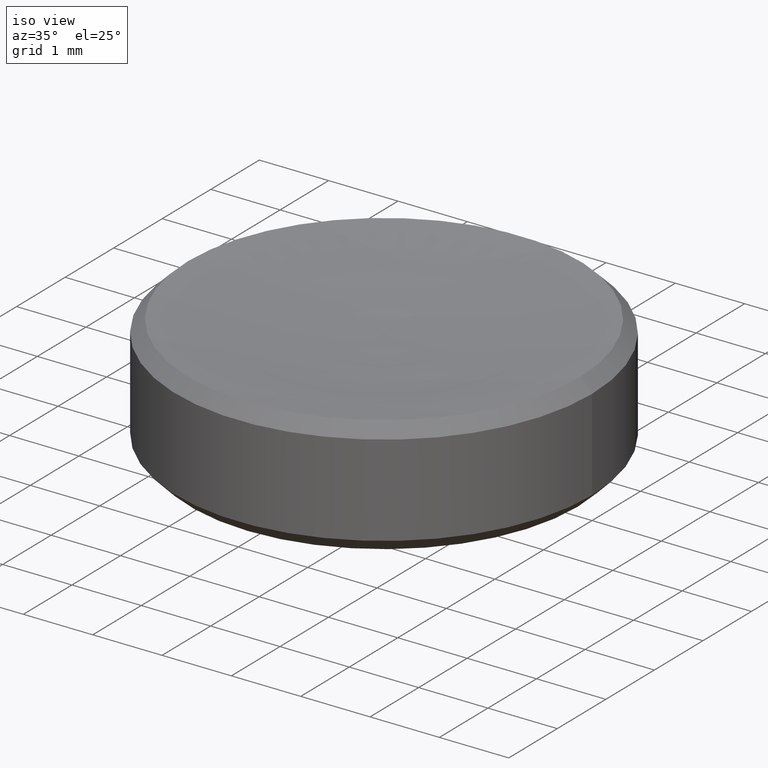
[diagram: clean part render]
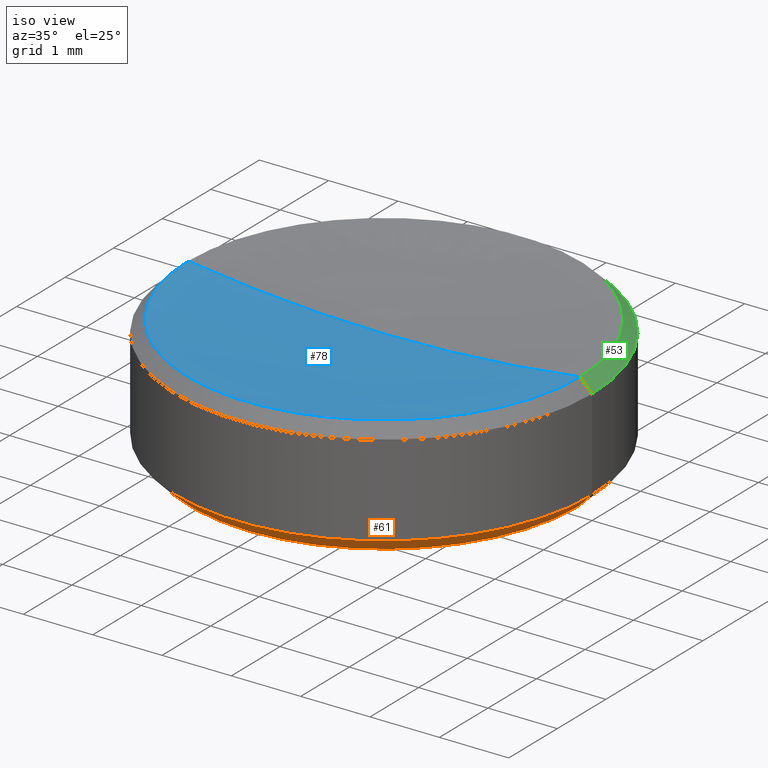
[diagram: same view with three faces highlighted in distinct colors, each labeled with its STEP entity id]
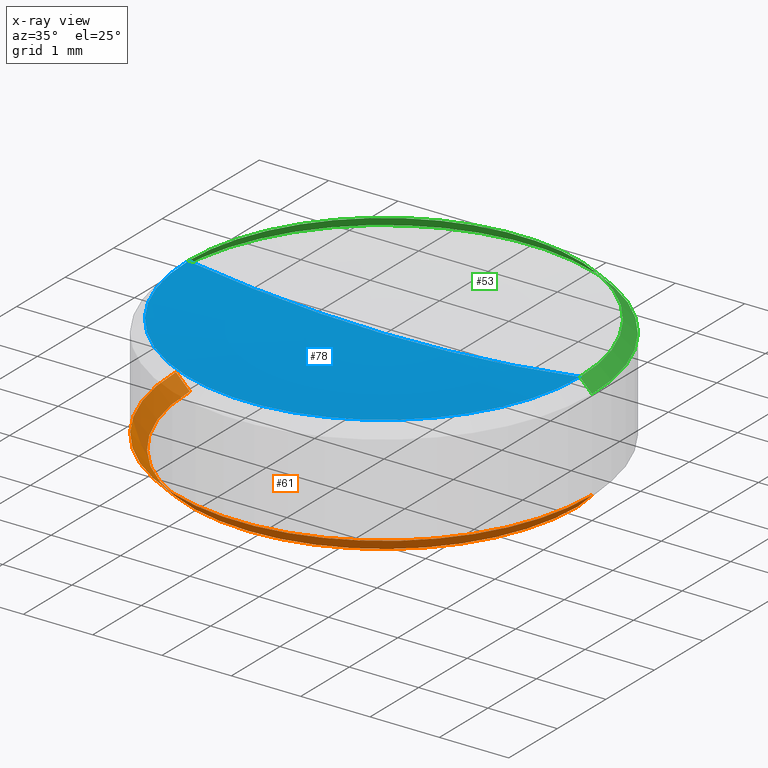
[diagram: x-ray of the same camera — body ghosted, the three highlighted faces saturated]
A machine part, iso view with three faces highlighted in distinct colors.
The next image is the same camera in x-ray (body ghosted, the three faces saturated) — at least one of them is partly hidden behind the body in this view.
Their STEP definitions:

[orange] entity #61 — the highlighted conical surface has half-angle 45 deg.
#2 = EDGE_CURVE ( 'NONE', #203, #196, #263, .T. ) ;
#17 = VECTOR ( 'NONE', #161, 1000.000000000000000 ) ;
#28 = LINE ( 'NONE', #241, #17 ) ;
#38 = CONICAL_SURFACE ( 'NONE', #184, 3.000000000000000000, 0.7853981633974471688 ) ;
#55 = ORIENTED_EDGE ( 'NONE', *, *, #126, .F. ) ;
#59 = AXIS2_PLACEMENT_3D ( 'NONE', #94, #153, #60 ) ;
#60 = DIRECTION ( 'NONE',  ( 1.000000000000000000, 0.000000000000000000, 0.000000000000000000 ) ) ;
#61 = ADVANCED_FACE ( 'NONE', ( #174 ), #38, .T. ) ;
#72 = ORIENTED_EDGE ( 'NONE', *, *, #2, .F. ) ;
#74 = CARTESIAN_POINT ( 'NONE',  ( -3.000000000000000000, 3.673940397442059868E-16, 0.2000000000000020373 ) ) ;
#83 = DIRECTION ( 'NONE',  ( 1.000000000000000000, 0.000000000000000000, 0.000000000000000000 ) ) ;
#87 = CIRCLE ( 'NONE', #59, 2.799999999999998490 ) ;
#94 = CARTESIAN_POINT ( 'NONE',  ( 0.000000000000000000, 0.000000000000000000, 1.836970198721029934E-16 ) ) ;
#96 = CARTESIAN_POINT ( 'NONE',  ( -3.000000000000000000, 3.673940397442059868E-16, 0.2000000000000020373 ) ) ;
#100 = AXIS2_PLACEMENT_3D ( 'NONE', #107, #233, #83 ) ;
#107 = CARTESIAN_POINT ( 'NONE',  ( 0.000000000000000000, 0.000000000000000000, 0.2000000000000020373 ) ) ;
#109 = DIRECTION ( 'NONE',  ( 1.000000000000000000, 0.000000000000000000, 0.000000000000000000 ) ) ;
#111 = CARTESIAN_POINT ( 'NONE',  ( 0.000000000000000000, 0.000000000000000000, 0.2000000000000020373 ) ) ;
#114 = EDGE_LOOP ( 'NONE', ( #72, #236, #199, #55 ) ) ;
#126 = EDGE_CURVE ( 'NONE', #196, #173, #215, .T. ) ;
#143 = CARTESIAN_POINT ( 'NONE',  ( 2.799999999999998490, 0.000000000000000000, 1.836970198721029934E-16 ) ) ;
#153 = DIRECTION ( 'NONE',  ( 0.000000000000000000, 0.000000000000000000, -1.000000000000000000 ) ) ;
#161 = DIRECTION ( 'NONE',  ( 0.7071067811865467956, 0.000000000000000000, 0.7071067811865483499 ) ) ;
#164 = VECTOR ( 'NONE', #197, 1000.000000000000000 ) ;
#173 = VERTEX_POINT ( 'NONE', #182 ) ;
#174 = FACE_OUTER_BOUND ( 'NONE', #114, .T. ) ;
#180 = CARTESIAN_POINT ( 'NONE',  ( -2.799999999999998490, 3.551475717527323339E-16, 1.836970198721029934E-16 ) ) ;
#182 = CARTESIAN_POINT ( 'NONE',  ( 3.000000000000000000, 0.000000000000000000, 0.2000000000000020373 ) ) ;
#184 = AXIS2_PLACEMENT_3D ( 'NONE', #111, #237, #109 ) ;
#196 = VERTEX_POINT ( 'NONE', #96 ) ;
#197 = DIRECTION ( 'NONE',  ( -0.7071067811865467956, 8.659560562354925463E-17, 0.7071067811865483499 ) ) ;
#199 = ORIENTED_EDGE ( 'NONE', *, *, #224, .T. ) ;
#203 = VERTEX_POINT ( 'NONE', #180 ) ;
#215 = CIRCLE ( 'NONE', #100, 3.000000000000000000 ) ;
#224 = EDGE_CURVE ( 'NONE', #243, #173, #28, .T. ) ;
#233 = DIRECTION ( 'NONE',  ( -0.000000000000000000, -0.000000000000000000, 1.000000000000000000 ) ) ;
#235 = EDGE_CURVE ( 'NONE', #243, #203, #87, .T. ) ;
#236 = ORIENTED_EDGE ( 'NONE', *, *, #235, .F. ) ;
#237 = DIRECTION ( 'NONE',  ( -0.000000000000000000, -0.000000000000000000, 1.000000000000000000 ) ) ;
#241 = CARTESIAN_POINT ( 'NONE',  ( 3.000000000000000000, 0.000000000000000000, 0.2000000000000020373 ) ) ;
#243 = VERTEX_POINT ( 'NONE', #143 ) ;
#263 = LINE ( 'NONE', #74, #164 ) ;

[blue] entity #78 — the highlighted toroidal blend (fillet) surface has major radius 0.0063 mm and minor (blend) radius 20.65 mm.
#3 = AXIS2_PLACEMENT_3D ( 'NONE', #108, #99, #93 ) ;
#21 = CIRCLE ( 'NONE', #216, 20.64999999999999858 ) ;
#32 = CARTESIAN_POINT ( 'NONE',  ( 0.000000000000000000, 0.000000000000000000, 1.500000000000000000 ) ) ;
#47 = CIRCLE ( 'NONE', #102, 20.64999999999999858 ) ;
#51 = CARTESIAN_POINT ( 'NONE',  ( 2.824988047808473013, 0.000000000000000000, 1.695011952191558091 ) ) ;
#56 = CARTESIAN_POINT ( 'NONE',  ( -0.006266596937432424366, 0.000000000000000000, 22.14999904914677842 ) ) ;
#57 = VERTEX_POINT ( 'NONE', #193 ) ;
#69 = DIRECTION ( 'NONE',  ( -1.000000000000000000, 1.224646799147353207E-16, 0.000000000000000000 ) ) ;
#78 = ADVANCED_FACE ( 'NONE', ( #127 ), #220, .F. ) ;
#88 = DIRECTION ( 'NONE',  ( 1.000000000000000000, 0.000000000000000000, 0.000000000000000000 ) ) ;
#93 = DIRECTION ( 'NONE',  ( 1.000000000000000000, 0.000000000000000000, 0.000000000000000000 ) ) ;
#99 = DIRECTION ( 'NONE',  ( -0.000000000000000000, -0.000000000000000000, 1.000000000000000000 ) ) ;
#102 = AXIS2_PLACEMENT_3D ( 'NONE', #212, #250, #69 ) ;
#108 = CARTESIAN_POINT ( 'NONE',  ( 0.000000000000000000, 0.000000000000000000, 1.695011952191558091 ) ) ;
#110 = ORIENTED_EDGE ( 'NONE', *, *, #142, .T. ) ;
#113 = ORIENTED_EDGE ( 'NONE', *, *, #231, .T. ) ;
#127 = FACE_OUTER_BOUND ( 'NONE', #214, .T. ) ;
#135 = DIRECTION ( 'NONE',  ( 0.000000000000000000, -1.000000000000000000, 0.000000000000000000 ) ) ;
#142 = EDGE_CURVE ( 'NONE', #57, #225, #242, .T. ) ;
#157 = VERTEX_POINT ( 'NONE', #32 ) ;
#167 = CARTESIAN_POINT ( 'NONE',  ( 0.000000000000000000, 0.000000000000000000, 22.14999904914677842 ) ) ;
#177 = EDGE_CURVE ( 'NONE', #157, #225, #21, .T. ) ;
#193 = CARTESIAN_POINT ( 'NONE',  ( -2.824988047808473013, 3.459612570378175633E-16, 1.695011952191558091 ) ) ;
#212 = CARTESIAN_POINT ( 'NONE',  ( 0.006266596937432424366, -7.674367880973224398E-19, 22.14999904914677842 ) ) ;
#214 = EDGE_LOOP ( 'NONE', ( #266, #113, #110 ) ) ;
#216 = AXIS2_PLACEMENT_3D ( 'NONE', #56, #135, #218 ) ;
#218 = DIRECTION ( 'NONE',  ( 0.000000000000000000, 0.000000000000000000, -1.000000000000000000 ) ) ;
#220 = TOROIDAL_SURFACE ( 'NONE', #257, -0.006266596937432424366, 20.64999999999999858 ) ;
#225 = VERTEX_POINT ( 'NONE', #51 ) ;
#231 = EDGE_CURVE ( 'NONE', #157, #57, #47, .T. ) ;
#242 = CIRCLE ( 'NONE', #3, 2.824988047808446812 ) ;
#250 = DIRECTION ( 'NONE',  ( 1.224646799147353207E-16, 1.000000000000000000, 0.000000000000000000 ) ) ;
#255 = DIRECTION ( 'NONE',  ( -0.000000000000000000, -0.000000000000000000, 1.000000000000000000 ) ) ;
#257 = AXIS2_PLACEMENT_3D ( 'NONE', #167, #255, #88 ) ;
#266 = ORIENTED_EDGE ( 'NONE', *, *, #177, .F. ) ;

[green] entity #53 — the highlighted conical surface has half-angle 45 deg.
#4 = CIRCLE ( 'NONE', #125, 2.824988047808446812 ) ;
#5 = CARTESIAN_POINT ( 'NONE',  ( -2.824988047808448144, 0.000000000000000000, 1.695011952191550986 ) ) ;
#10 = ORIENTED_EDGE ( 'NONE', *, *, #262, .F. ) ;
#11 = FACE_OUTER_BOUND ( 'NONE', #92, .T. ) ;
#12 = DIRECTION ( 'NONE',  ( 0.000000000000000000, 0.000000000000000000, -1.000000000000000000 ) ) ;
#15 = DIRECTION ( 'NONE',  ( -0.000000000000000000, -0.000000000000000000, 1.000000000000000000 ) ) ;
#16 = VECTOR ( 'NONE', #129, 1000.000000000000000 ) ;
#24 = LINE ( 'NONE', #5, #73 ) ;
#25 = DIRECTION ( 'NONE',  ( -1.000000000000000000, 0.000000000000000000, 0.000000000000000000 ) ) ;
#26 = DIRECTION ( 'NONE',  ( 0.000000000000000000, 0.000000000000000000, -1.000000000000000000 ) ) ;
#31 = ORIENTED_EDGE ( 'NONE', *, *, #147, .F. ) ;
#36 = CARTESIAN_POINT ( 'NONE',  ( 0.000000000000000000, 0.000000000000000000, 1.519999999999993578 ) ) ;
#51 = CARTESIAN_POINT ( 'NONE',  ( 2.824988047808473013, 0.000000000000000000, 1.695011952191558091 ) ) ;
#53 = ADVANCED_FACE ( 'NONE', ( #11 ), #162, .T. ) ;
#54 = CARTESIAN_POINT ( 'NONE',  ( -3.000000000000000000, 3.673940397442059868E-16, 1.519999999999993578 ) ) ;
#57 = VERTEX_POINT ( 'NONE', #193 ) ;
#73 = VECTOR ( 'NONE', #152, 1000.000000000000000 ) ;
#92 = EDGE_LOOP ( 'NONE', ( #10, #259, #31, #154 ) ) ;
#106 = EDGE_CURVE ( 'NONE', #57, #245, #24, .T. ) ;
#121 = VERTEX_POINT ( 'NONE', #150 ) ;
#125 = AXIS2_PLACEMENT_3D ( 'NONE', #234, #15, #178 ) ;
#129 = DIRECTION ( 'NONE',  ( 0.7071067811865361374, 8.659560562354792342E-17, -0.7071067811865588970 ) ) ;
#136 = EDGE_CURVE ( 'NONE', #225, #121, #192, .T. ) ;
#147 = EDGE_CURVE ( 'NONE', #245, #121, #158, .T. ) ;
#149 = CARTESIAN_POINT ( 'NONE',  ( 2.824988047808448144, 3.459612570378145558E-16, 1.695011952191550986 ) ) ;
#150 = CARTESIAN_POINT ( 'NONE',  ( 3.000000000000000000, 0.000000000000000000, 1.519999999999993578 ) ) ;
#151 = AXIS2_PLACEMENT_3D ( 'NONE', #260, #26, #25 ) ;
#152 = DIRECTION ( 'NONE',  ( -0.7071067811865361374, 0.000000000000000000, -0.7071067811865588970 ) ) ;
#154 = ORIENTED_EDGE ( 'NONE', *, *, #106, .F. ) ;
#158 = CIRCLE ( 'NONE', #190, 3.000000000000000000 ) ;
#162 = CONICAL_SURFACE ( 'NONE', #151, 2.824988047808448144, 0.7853981633974321808 ) ;
#178 = DIRECTION ( 'NONE',  ( 1.000000000000000000, 0.000000000000000000, 0.000000000000000000 ) ) ;
#190 = AXIS2_PLACEMENT_3D ( 'NONE', #36, #12, #244 ) ;
#192 = LINE ( 'NONE', #149, #16 ) ;
#193 = CARTESIAN_POINT ( 'NONE',  ( -2.824988047808473013, 3.459612570378175633E-16, 1.695011952191558091 ) ) ;
#225 = VERTEX_POINT ( 'NONE', #51 ) ;
#234 = CARTESIAN_POINT ( 'NONE',  ( 0.000000000000000000, 0.000000000000000000, 1.695011952191558091 ) ) ;
#244 = DIRECTION ( 'NONE',  ( -1.000000000000000000, 0.000000000000000000, 0.000000000000000000 ) ) ;
#245 = VERTEX_POINT ( 'NONE', #54 ) ;
#259 = ORIENTED_EDGE ( 'NONE', *, *, #136, .T. ) ;
#260 = CARTESIAN_POINT ( 'NONE',  ( 0.000000000000000000, 0.000000000000000000, 1.695011952191550986 ) ) ;
#262 = EDGE_CURVE ( 'NONE', #225, #57, #4, .T. ) ;